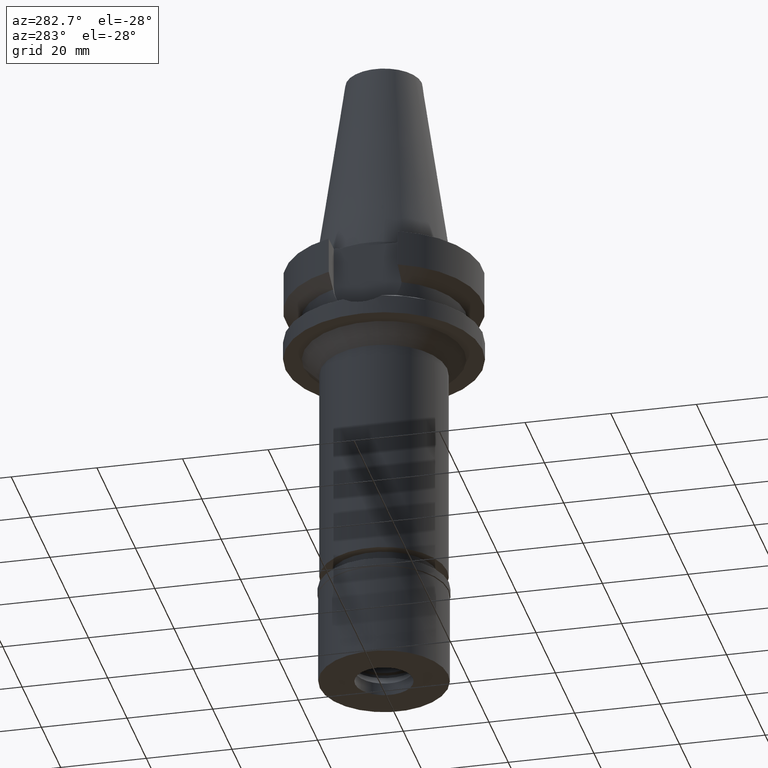
[diagram: clean part render]
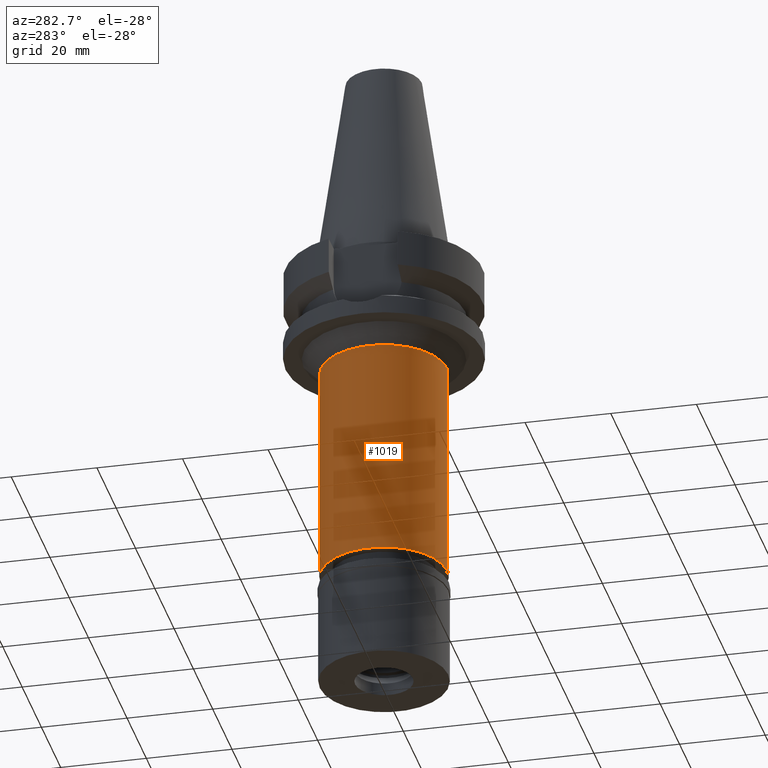
[diagram: same view with one face highlighted and labeled with its STEP entity id]
A machine part, auxiliary view. The second image highlights one B-rep face of the part: STEP entity #1019.
In plain terms, the highlighted cylindrical surface (partial cylindrical patch) has radius 14.75 mm, axis along (0, 0, -1).
Its self-contained STEP definition (entity closure, byte-faithful):
#30 = VERTEX_POINT ( 'NONE', #2236 ) ;
#72 = CARTESIAN_POINT ( 'NONE',  ( 0.0000000000000000000, 0.0000000000000000000, -26.00000000000000000 ) ) ;
#126 = CARTESIAN_POINT ( 'NONE',  ( 0.0000000000000000000, -14.75000000000000000, -26.00000000000000000 ) ) ;
#274 = EDGE_CURVE ( 'NONE', #30, #519, #435, .T. ) ;
#304 = DIRECTION ( 'NONE',  ( 0.0000000000000000000, 1.000000000000000000, 0.0000000000000000000 ) ) ;
#322 = CARTESIAN_POINT ( 'NONE',  ( 0.0000000000000000000, 14.75000000000000000, -26.00000000000000000 ) ) ;
#435 = CIRCLE ( 'NONE', #1998, 14.75000000000000000 ) ;
#472 = DIRECTION ( 'NONE',  ( 0.0000000000000000000, 0.0000000000000000000, 1.000000000000000000 ) ) ;
#493 = CIRCLE ( 'NONE', #2891, 14.75000000000000000 ) ;
#519 = VERTEX_POINT ( 'NONE', #322 ) ;
#543 = FACE_OUTER_BOUND ( 'NONE', #2481, .T. ) ;
#561 = CARTESIAN_POINT ( 'NONE',  ( 0.0000000000000000000, 1.905183025433999888E-14, 55.57000000000000028 ) ) ;
#740 = AXIS2_PLACEMENT_3D ( 'NONE', #561, #1219, #798 ) ;
#798 = DIRECTION ( 'NONE',  ( 0.0000000000000000000, -1.000000000000000000, 0.0000000000000000000 ) ) ;
#846 = DIRECTION ( 'NONE',  ( 0.0000000000000000000, 0.0000000000000000000, -1.000000000000000000 ) ) ;
#872 = ORIENTED_EDGE ( 'NONE', *, *, #1840, .F. ) ;
#939 = ORIENTED_EDGE ( 'NONE', *, *, #2277, .T. ) ;
#943 = ORIENTED_EDGE ( 'NONE', *, *, #274, .T. ) ;
#949 = DIRECTION ( 'NONE',  ( 0.0000000000000000000, -1.000000000000000000, 0.0000000000000000000 ) ) ;
#994 = EDGE_CURVE ( 'NONE', #1554, #2456, #493, .T. ) ;
#1019 = ADVANCED_FACE ( 'NONE', ( #543 ), #2135, .T. ) ;
#1135 = CARTESIAN_POINT ( 'NONE',  ( 0.0000000000000000000, -14.75000000000000000, -78.20000000000000284 ) ) ;
#1219 = DIRECTION ( 'NONE',  ( 0.0000000000000000000, 0.0000000000000000000, -1.000000000000000000 ) ) ;
#1497 = VECTOR ( 'NONE', #2873, 1000.000000000000000 ) ;
#1500 = LINE ( 'NONE', #126, #1497 ) ;
#1554 = VERTEX_POINT ( 'NONE', #1690 ) ;
#1690 = CARTESIAN_POINT ( 'NONE',  ( 0.0000000000000000000, 14.75000000000000000, -78.20000000000000284 ) ) ;
#1772 = VECTOR ( 'NONE', #846, 1000.000000000000000 ) ;
#1840 = EDGE_CURVE ( 'NONE', #30, #2456, #1500, .T. ) ;
#1998 = AXIS2_PLACEMENT_3D ( 'NONE', #72, #2710, #949 ) ;
#2135 = CYLINDRICAL_SURFACE ( 'NONE', #740, 14.75000000000000000 ) ;
#2236 = CARTESIAN_POINT ( 'NONE',  ( 0.0000000000000000000, -14.75000000000000000, -26.00000000000000000 ) ) ;
#2277 = EDGE_CURVE ( 'NONE', #519, #1554, #2382, .T. ) ;
#2382 = LINE ( 'NONE', #2821, #1772 ) ;
#2456 = VERTEX_POINT ( 'NONE', #1135 ) ;
#2481 = EDGE_LOOP ( 'NONE', ( #2484, #872, #943, #939 ) ) ;
#2484 = ORIENTED_EDGE ( 'NONE', *, *, #994, .T. ) ;
#2497 = CARTESIAN_POINT ( 'NONE',  ( 0.0000000000000000000, 1.905183025433999888E-14, -78.20000000000000284 ) ) ;
#2710 = DIRECTION ( 'NONE',  ( 0.0000000000000000000, 0.0000000000000000000, -1.000000000000000000 ) ) ;
#2821 = CARTESIAN_POINT ( 'NONE',  ( 0.0000000000000000000, 14.75000000000000000, -26.00000000000000000 ) ) ;
#2873 = DIRECTION ( 'NONE',  ( 0.0000000000000000000, 0.0000000000000000000, -1.000000000000000000 ) ) ;
#2891 = AXIS2_PLACEMENT_3D ( 'NONE', #2497, #472, #304 ) ;